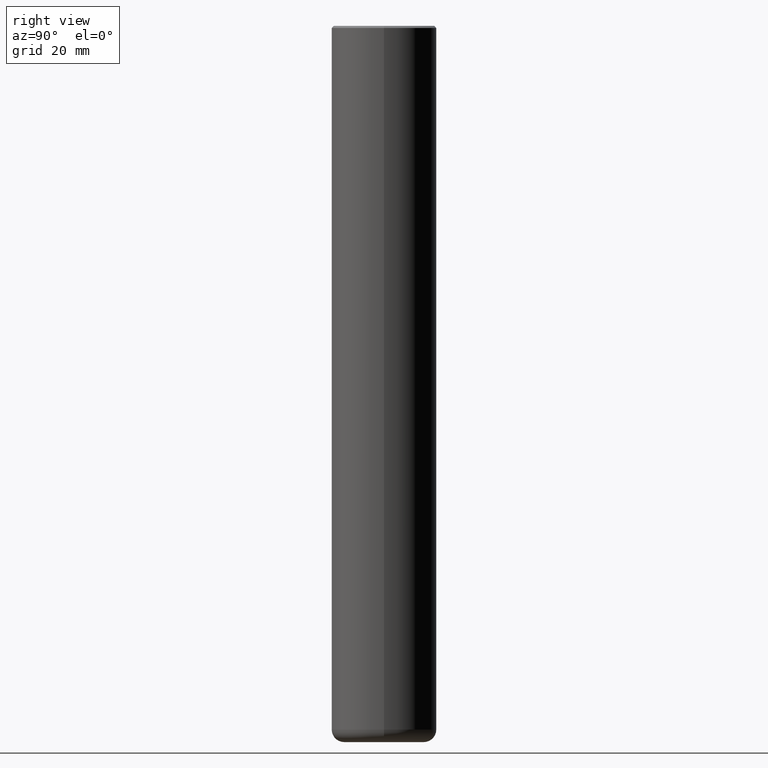
[diagram: clean part render]
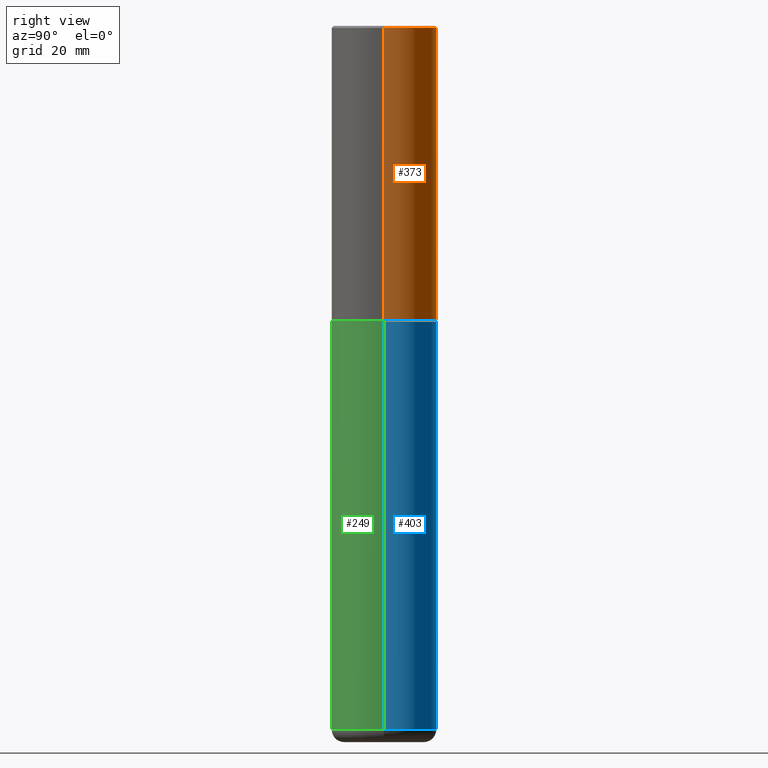
[diagram: same view with three faces highlighted in distinct colors, each labeled with its STEP entity id]
A machine part, right view with three faces highlighted in distinct colors.
Their STEP definitions:

[orange] entity #373 — the highlighted cylindrical surface (partial cylindrical patch) has radius 12.5006 mm, axis along (-0, 0, 1).
#10 = FACE_OUTER_BOUND ( 'NONE', #346, .T. ) ;
#17 = VERTEX_POINT ( 'NONE', #55 ) ;
#22 = CARTESIAN_POINT ( 'NONE',  ( 4.890937612370299433E-31, -6.982962677686328587E-17, -0.02000000000000010797 ) ) ;
#39 = CIRCLE ( 'NONE', #318, 0.4921499999999999764 ) ;
#42 = CYLINDRICAL_SURFACE ( 'NONE', #191, 0.4921500000000000874 ) ;
#55 = CARTESIAN_POINT ( 'NONE',  ( 0.4921500000000003094, -1.305534702220228032E-14, -2.754900000000000126 ) ) ;
#64 = EDGE_CURVE ( 'NONE', #17, #129, #146, .T. ) ;
#70 = CARTESIAN_POINT ( 'NONE',  ( 0.4921500000000000874, -3.436665081823296565E-15, 2.399810400207970163E-29 ) ) ;
#85 = CARTESIAN_POINT ( 'NONE',  ( 6.737022014159432629E-29, -9.618681940378981383E-15, -2.754900000000000126 ) ) ;
#93 = EDGE_CURVE ( 'NONE', #313, #289, #39, .T. ) ;
#101 = DIRECTION ( 'NONE',  ( -2.445468806185136877E-29, 3.491481338843145188E-15, 1.000000000000000000 ) ) ;
#110 = ORIENTED_EDGE ( 'NONE', *, *, #335, .T. ) ;
#111 = CARTESIAN_POINT ( 'NONE',  ( -0.4921499999999999764, 3.366835455046432478E-15, -0.02000000000000010797 ) ) ;
#129 = VERTEX_POINT ( 'NONE', #262 ) ;
#132 = AXIS2_PLACEMENT_3D ( 'NONE', #85, #281, #217 ) ;
#146 = CIRCLE ( 'NONE', #132, 0.4921500000000003094 ) ;
#176 = DIRECTION ( 'NONE',  ( -2.445468806185136597E-29, 3.491481338843145583E-15, 1.000000000000000000 ) ) ;
#178 = ORIENTED_EDGE ( 'NONE', *, *, #93, .F. ) ;
#191 = AXIS2_PLACEMENT_3D ( 'NONE', #302, #176, #333 ) ;
#203 = CARTESIAN_POINT ( 'NONE',  ( -0.4921500000000000874, 3.496936074043333686E-15, -2.420853904668952350E-29 ) ) ;
#207 = VECTOR ( 'NONE', #301, 39.37007874015748143 ) ;
#217 = DIRECTION ( 'NONE',  ( 1.000000000000000000, -6.982962677686265922E-15, 0.000000000000000000 ) ) ;
#241 = ORIENTED_EDGE ( 'NONE', *, *, #64, .T. ) ;
#245 = DIRECTION ( 'NONE',  ( -2.445468806185136597E-29, 3.491481338843145583E-15, 1.000000000000000000 ) ) ;
#262 = CARTESIAN_POINT ( 'NONE',  ( -0.4921500000000003094, -1.347319709534584908E-15, -2.754900000000000126 ) ) ;
#281 = DIRECTION ( 'NONE',  ( -2.445468806185136597E-29, 3.491481338843145583E-15, 1.000000000000000000 ) ) ;
#288 = ORIENTED_EDGE ( 'NONE', *, *, #344, .F. ) ;
#289 = VERTEX_POINT ( 'NONE', #111 ) ;
#301 = DIRECTION ( 'NONE',  ( -2.445468806185136877E-29, 3.491481338843145188E-15, 1.000000000000000000 ) ) ;
#302 = CARTESIAN_POINT ( 'NONE',  ( 0.000000000000000000, 0.000000000000000000, 0.000000000000000000 ) ) ;
#313 = VERTEX_POINT ( 'NONE', #389 ) ;
#318 = AXIS2_PLACEMENT_3D ( 'NONE', #22, #245, #385 ) ;
#333 = DIRECTION ( 'NONE',  ( 1.000000000000000000, -6.982962677686265922E-15, 4.876176775795935793E-29 ) ) ;
#335 = EDGE_CURVE ( 'NONE', #129, #289, #361, .T. ) ;
#344 = EDGE_CURVE ( 'NONE', #17, #313, #364, .T. ) ;
#346 = EDGE_LOOP ( 'NONE', ( #241, #110, #178, #288 ) ) ;
#361 = LINE ( 'NONE', #203, #378 ) ;
#364 = LINE ( 'NONE', #70, #207 ) ;
#373 = ADVANCED_FACE ( 'NONE', ( #10 ), #42, .T. ) ;
#378 = VECTOR ( 'NONE', #101, 39.37007874015748143 ) ;
#385 = DIRECTION ( 'NONE',  ( 1.000000000000000000, -6.982962677686265922E-15, 0.000000000000000000 ) ) ;
#389 = CARTESIAN_POINT ( 'NONE',  ( 0.4921499999999999764, -3.446223716380122349E-15, -0.02000000000000010797 ) ) ;

[blue] entity #403 — the highlighted cylindrical surface (partial cylindrical patch) has radius 12.5006 mm, axis along (-0, 0, 1).
#9 = EDGE_CURVE ( 'NONE', #91, #29, #411, .T. ) ;
#26 = EDGE_LOOP ( 'NONE', ( #416, #380, #273, #324 ) ) ;
#27 = AXIS2_PLACEMENT_3D ( 'NONE', #35, #31, #166 ) ;
#29 = VERTEX_POINT ( 'NONE', #52 ) ;
#31 = DIRECTION ( 'NONE',  ( -2.445468806185136597E-29, 3.491481338843145583E-15, 1.000000000000000000 ) ) ;
#35 = CARTESIAN_POINT ( 'NONE',  ( 6.739467482965618232E-29, -9.622173421717824390E-15, -2.755900000000000016 ) ) ;
#52 = CARTESIAN_POINT ( 'NONE',  ( 0.4921499999999999764, -1.305883850354112017E-14, -2.755900000000000016 ) ) ;
#88 = CIRCLE ( 'NONE', #27, 0.4921499999999999764 ) ;
#91 = VERTEX_POINT ( 'NONE', #311 ) ;
#102 = EDGE_CURVE ( 'NONE', #109, #250, #193, .T. ) ;
#109 = VERTEX_POINT ( 'NONE', #331 ) ;
#140 = DIRECTION ( 'NONE',  ( 1.000000000000000000, -6.982962677686265922E-15, 4.876176775795935793E-29 ) ) ;
#166 = DIRECTION ( 'NONE',  ( 1.000000000000000000, -6.982962677686265922E-15, 0.000000000000000000 ) ) ;
#171 = DIRECTION ( 'NONE',  ( -2.445468806185136597E-29, 3.491481338843145583E-15, 1.000000000000000000 ) ) ;
#193 = LINE ( 'NONE', #384, #370 ) ;
#200 = EDGE_CURVE ( 'NONE', #29, #250, #88, .T. ) ;
#204 = CARTESIAN_POINT ( 'NONE',  ( 0.000000000000000000, 0.000000000000000000, 0.000000000000000000 ) ) ;
#228 = DIRECTION ( 'NONE',  ( -2.445468806185136597E-29, 3.491481338843145583E-15, 1.000000000000000000 ) ) ;
#229 = CYLINDRICAL_SURFACE ( 'NONE', #410, 0.4921499999999999764 ) ;
#231 = CARTESIAN_POINT ( 'NONE',  ( 1.607846830690603466E-28, -2.295579150662591525E-14, -6.574799999999999756 ) ) ;
#236 = DIRECTION ( 'NONE',  ( 1.000000000000000000, -6.982962677686265922E-15, 0.000000000000000000 ) ) ;
#238 = VECTOR ( 'NONE', #314, 39.37007874015748143 ) ;
#250 = VERTEX_POINT ( 'NONE', #418 ) ;
#266 = FACE_OUTER_BOUND ( 'NONE', #26, .T. ) ;
#273 = ORIENTED_EDGE ( 'NONE', *, *, #200, .F. ) ;
#311 = CARTESIAN_POINT ( 'NONE',  ( 0.4921499999999996988, -2.639245658844920945E-14, -6.574799999999999756 ) ) ;
#314 = DIRECTION ( 'NONE',  ( -2.445468806185136877E-29, 3.491481338843145188E-15, 1.000000000000000000 ) ) ;
#315 = EDGE_CURVE ( 'NONE', #91, #109, #409, .T. ) ;
#316 = CARTESIAN_POINT ( 'NONE',  ( 0.4921499999999999764, -3.436665081823295777E-15, 2.399810400207969603E-29 ) ) ;
#324 = ORIENTED_EDGE ( 'NONE', *, *, #9, .F. ) ;
#327 = AXIS2_PLACEMENT_3D ( 'NONE', #231, #228, #236 ) ;
#331 = CARTESIAN_POINT ( 'NONE',  ( -0.4921499999999996988, -1.945885543258258788E-14, -6.574799999999999756 ) ) ;
#360 = DIRECTION ( 'NONE',  ( -2.445468806185136877E-29, 3.491481338843145188E-15, 1.000000000000000000 ) ) ;
#370 = VECTOR ( 'NONE', #360, 39.37007874015748143 ) ;
#380 = ORIENTED_EDGE ( 'NONE', *, *, #102, .T. ) ;
#384 = CARTESIAN_POINT ( 'NONE',  ( -0.4921499999999999764, 3.496936074043332897E-15, -2.420853904668951509E-29 ) ) ;
#403 = ADVANCED_FACE ( 'NONE', ( #266 ), #229, .T. ) ;
#409 = CIRCLE ( 'NONE', #327, 0.4921499999999999764 ) ;
#410 = AXIS2_PLACEMENT_3D ( 'NONE', #204, #171, #140 ) ;
#411 = LINE ( 'NONE', #316, #238 ) ;
#416 = ORIENTED_EDGE ( 'NONE', *, *, #315, .T. ) ;
#418 = CARTESIAN_POINT ( 'NONE',  ( -0.4921499999999999764, -1.279204639012853613E-14, -2.755900000000000016 ) ) ;

[green] entity #249 — the highlighted cylindrical surface (partial cylindrical patch) has radius 12.5006 mm, axis along (-0, 0, 1).
#9 = EDGE_CURVE ( 'NONE', #91, #29, #411, .T. ) ;
#29 = VERTEX_POINT ( 'NONE', #52 ) ;
#32 = EDGE_CURVE ( 'NONE', #250, #29, #126, .T. ) ;
#52 = CARTESIAN_POINT ( 'NONE',  ( 0.4921499999999999764, -1.305883850354112017E-14, -2.755900000000000016 ) ) ;
#74 = DIRECTION ( 'NONE',  ( -2.445468806185136597E-29, 3.491481338843145583E-15, 1.000000000000000000 ) ) ;
#81 = EDGE_LOOP ( 'NONE', ( #153, #157, #151, #156 ) ) ;
#83 = AXIS2_PLACEMENT_3D ( 'NONE', #284, #181, #248 ) ;
#91 = VERTEX_POINT ( 'NONE', #311 ) ;
#102 = EDGE_CURVE ( 'NONE', #109, #250, #193, .T. ) ;
#109 = VERTEX_POINT ( 'NONE', #331 ) ;
#126 = CIRCLE ( 'NONE', #83, 0.4921499999999999764 ) ;
#128 = FACE_OUTER_BOUND ( 'NONE', #81, .T. ) ;
#151 = ORIENTED_EDGE ( 'NONE', *, *, #9, .T. ) ;
#153 = ORIENTED_EDGE ( 'NONE', *, *, #102, .F. ) ;
#156 = ORIENTED_EDGE ( 'NONE', *, *, #32, .F. ) ;
#157 = ORIENTED_EDGE ( 'NONE', *, *, #400, .T. ) ;
#161 = CARTESIAN_POINT ( 'NONE',  ( 0.000000000000000000, 0.000000000000000000, 0.000000000000000000 ) ) ;
#181 = DIRECTION ( 'NONE',  ( -2.445468806185136597E-29, 3.491481338843145583E-15, 1.000000000000000000 ) ) ;
#193 = LINE ( 'NONE', #384, #370 ) ;
#195 = CYLINDRICAL_SURFACE ( 'NONE', #246, 0.4921499999999999764 ) ;
#197 = CIRCLE ( 'NONE', #352, 0.4921499999999999764 ) ;
#201 = CARTESIAN_POINT ( 'NONE',  ( 1.607846830690603466E-28, -2.295579150662591525E-14, -6.574799999999999756 ) ) ;
#238 = VECTOR ( 'NONE', #314, 39.37007874015748143 ) ;
#246 = AXIS2_PLACEMENT_3D ( 'NONE', #161, #329, #294 ) ;
#248 = DIRECTION ( 'NONE',  ( 1.000000000000000000, -6.982962677686265922E-15, 0.000000000000000000 ) ) ;
#249 = ADVANCED_FACE ( 'NONE', ( #128 ), #195, .T. ) ;
#250 = VERTEX_POINT ( 'NONE', #418 ) ;
#284 = CARTESIAN_POINT ( 'NONE',  ( 6.739467482965618232E-29, -9.622173421717824390E-15, -2.755900000000000016 ) ) ;
#294 = DIRECTION ( 'NONE',  ( 1.000000000000000000, -6.982962677686265922E-15, 4.876176775795935793E-29 ) ) ;
#311 = CARTESIAN_POINT ( 'NONE',  ( 0.4921499999999996988, -2.639245658844920945E-14, -6.574799999999999756 ) ) ;
#314 = DIRECTION ( 'NONE',  ( -2.445468806185136877E-29, 3.491481338843145188E-15, 1.000000000000000000 ) ) ;
#316 = CARTESIAN_POINT ( 'NONE',  ( 0.4921499999999999764, -3.436665081823295777E-15, 2.399810400207969603E-29 ) ) ;
#329 = DIRECTION ( 'NONE',  ( -2.445468806185136597E-29, 3.491481338843145583E-15, 1.000000000000000000 ) ) ;
#331 = CARTESIAN_POINT ( 'NONE',  ( -0.4921499999999996988, -1.945885543258258788E-14, -6.574799999999999756 ) ) ;
#352 = AXIS2_PLACEMENT_3D ( 'NONE', #201, #74, #369 ) ;
#360 = DIRECTION ( 'NONE',  ( -2.445468806185136877E-29, 3.491481338843145188E-15, 1.000000000000000000 ) ) ;
#369 = DIRECTION ( 'NONE',  ( 1.000000000000000000, -6.982962677686265922E-15, 0.000000000000000000 ) ) ;
#370 = VECTOR ( 'NONE', #360, 39.37007874015748143 ) ;
#384 = CARTESIAN_POINT ( 'NONE',  ( -0.4921499999999999764, 3.496936074043332897E-15, -2.420853904668951509E-29 ) ) ;
#400 = EDGE_CURVE ( 'NONE', #109, #91, #197, .T. ) ;
#411 = LINE ( 'NONE', #316, #238 ) ;
#418 = CARTESIAN_POINT ( 'NONE',  ( -0.4921499999999999764, -1.279204639012853613E-14, -2.755900000000000016 ) ) ;